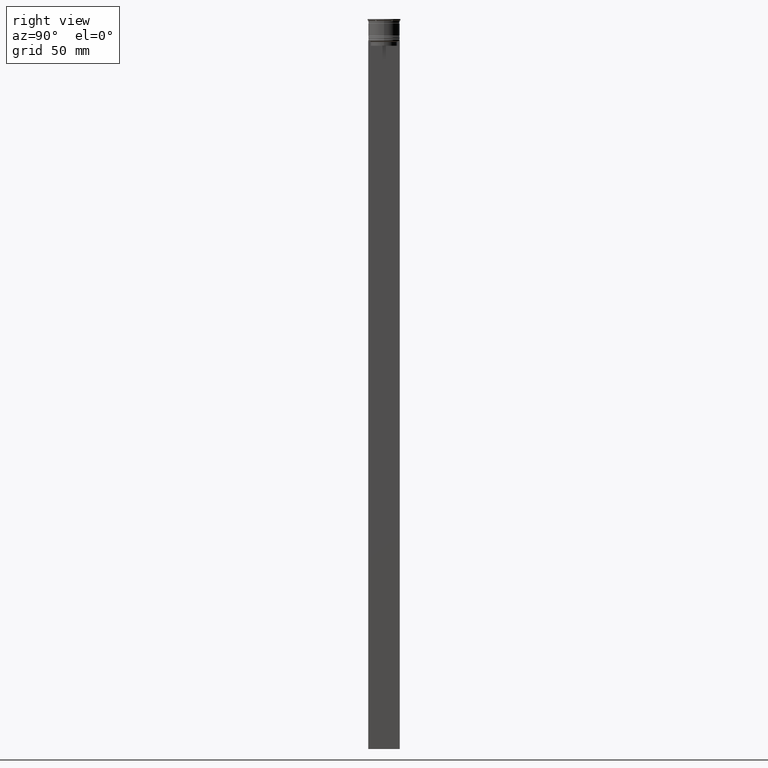
[diagram: clean part render]
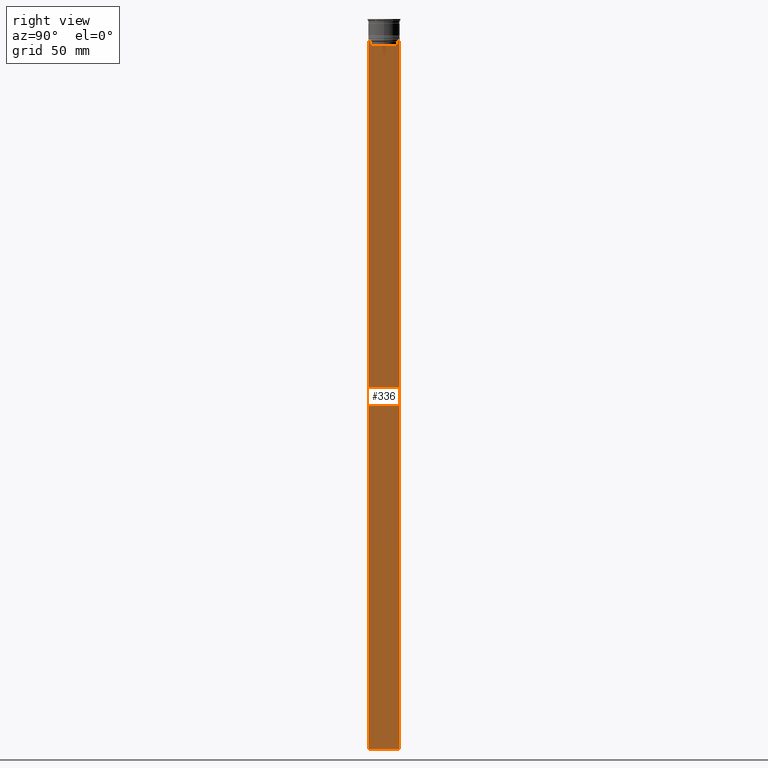
[diagram: same view with one face highlighted and labeled with its STEP entity id]
A machine part, right view. The second image highlights one B-rep face of the part: STEP entity #336.
In plain terms, the highlighted planar face has unit normal (-1, 0, 0).
Its self-contained STEP definition (entity closure, byte-faithful):
#20 = DIRECTION ( 'NONE',  ( -1.000000000000000000, 0.000000000000000000, 0.000000000000000000 ) ) ;
#36 = ORIENTED_EDGE ( 'NONE', *, *, #1886, .T. ) ;
#57 = VERTEX_POINT ( 'NONE', #1461 ) ;
#77 = CARTESIAN_POINT ( 'NONE',  ( 0.5000000000000000000, -8.385105843100616241, 0.000000000000000000 ) ) ;
#112 = LINE ( 'NONE', #960, #1895 ) ;
#126 = EDGE_CURVE ( 'NONE', #885, #1462, #1929, .T. ) ;
#194 = EDGE_CURVE ( 'NONE', #1013, #358, #1632, .T. ) ;
#214 = CARTESIAN_POINT ( 'NONE',  ( 0.5000000000000000000, -10.00000000000000178, 6.024984394500783047 ) ) ;
#246 = CARTESIAN_POINT ( 'NONE',  ( 0.5000000000000000000, 9.999999999999998224, 6.024984394500783047 ) ) ;
#247 = CARTESIAN_POINT ( 'NONE',  ( 0.5000000000000000000, -10.00000000000000178, -14.00000000000000178 ) ) ;
#294 = EDGE_CURVE ( 'NONE', #672, #853, #648, .T. ) ;
#315 = EDGE_CURVE ( 'NONE', #776, #1013, #1501, .T. ) ;
#320 = ORIENTED_EDGE ( 'NONE', *, *, #2610, .F. ) ;
#336 = ADVANCED_FACE ( 'NONE', ( #1254 ), #2061, .F. ) ;
#344 = VERTEX_POINT ( 'NONE', #2355 ) ;
#358 = VERTEX_POINT ( 'NONE', #2154 ) ;
#367 = LINE ( 'NONE', #2606, #1734 ) ;
#385 = CARTESIAN_POINT ( 'NONE',  ( 0.5000000000000000000, -10.00000000000000178, -464.0000000000000000 ) ) ;
#416 = CARTESIAN_POINT ( 'NONE',  ( 0.5000000000000000000, -8.385105843100616241, -14.50000000000000000 ) ) ;
#486 = ORIENTED_EDGE ( 'NONE', *, *, #194, .T. ) ;
#501 = CARTESIAN_POINT ( 'NONE',  ( 0.5000000000000000000, 8.385105843100616241, -14.50000000000000000 ) ) ;
#502 = ORIENTED_EDGE ( 'NONE', *, *, #1962, .T. ) ;
#521 = CARTESIAN_POINT ( 'NONE',  ( 0.5000000000000000000, 8.885943956609230199, -14.00000000000000178 ) ) ;
#529 = VECTOR ( 'NONE', #1989, 1000.000000000000000 ) ;
#548 = LINE ( 'NONE', #1404, #2597 ) ;
#588 = CARTESIAN_POINT ( 'NONE',  ( 0.5000000000000000000, -8.385105843100616241, -14.50000000000000000 ) ) ;
#613 = VECTOR ( 'NONE', #2666, 1000.000000000000000 ) ;
#620 = ORIENTED_EDGE ( 'NONE', *, *, #126, .T. ) ;
#648 = LINE ( 'NONE', #1487, #1270 ) ;
#672 = VERTEX_POINT ( 'NONE', #2589 ) ;
#673 = LINE ( 'NONE', #1242, #613 ) ;
#680 = LINE ( 'NONE', #246, #792 ) ;
#691 = ORIENTED_EDGE ( 'NONE', *, *, #1728, .T. ) ;
#759 = CARTESIAN_POINT ( 'NONE',  ( 0.5000000000000000000, -8.385105843100616241, -17.00000000000000000 ) ) ;
#760 = DIRECTION ( 'NONE',  ( 0.000000000000000000, -1.000000000000000000, 0.000000000000000000 ) ) ;
#776 = VERTEX_POINT ( 'NONE', #860 ) ;
#792 = VECTOR ( 'NONE', #1512, 1000.000000000000000 ) ;
#847 = DIRECTION ( 'NONE',  ( 0.000000000000000000, 0.000000000000000000, 1.000000000000000000 ) ) ;
#853 = VERTEX_POINT ( 'NONE', #2149 ) ;
#860 = CARTESIAN_POINT ( 'NONE',  ( 0.5000000000000000000, 9.887365675446622149, -14.00000000000000178 ) ) ;
#880 = VECTOR ( 'NONE', #2309, 1000.000000000000000 ) ;
#885 = VERTEX_POINT ( 'NONE', #759 ) ;
#889 = VERTEX_POINT ( 'NONE', #2401 ) ;
#951 = ORIENTED_EDGE ( 'NONE', *, *, #315, .T. ) ;
#960 = CARTESIAN_POINT ( 'NONE',  ( 0.5000000000000000000, -10.00000000000000178, 6.024984394500783047 ) ) ;
#971 = EDGE_LOOP ( 'NONE', ( #951, #486, #502, #1266, #620, #1040, #1710, #36, #2554, #691, #320, #2306 ) ) ;
#1013 = VERTEX_POINT ( 'NONE', #1174 ) ;
#1040 = ORIENTED_EDGE ( 'NONE', *, *, #1590, .T. ) ;
#1095 = EDGE_CURVE ( 'NONE', #2493, #776, #673, .T. ) ;
#1137 = CARTESIAN_POINT ( 'NONE',  ( 0.5000000000000000000, -8.885943956609230199, -14.00000000000000178 ) ) ;
#1174 = CARTESIAN_POINT ( 'NONE',  ( 0.5000000000000000000, 8.885943956609230199, -14.00000000000000178 ) ) ;
#1181 = DIRECTION ( 'NONE',  ( 0.000000000000000000, 0.000000000000000000, -1.000000000000000000 ) ) ;
#1242 = CARTESIAN_POINT ( 'NONE',  ( 0.5000000000000000000, -10.00000000000000178, -14.00000000000000178 ) ) ;
#1248 = DIRECTION ( 'NONE',  ( 0.000000000000000000, 1.000000000000000000, 0.000000000000000000 ) ) ;
#1254 = FACE_OUTER_BOUND ( 'NONE', #971, .T. ) ;
#1266 = ORIENTED_EDGE ( 'NONE', *, *, #1935, .T. ) ;
#1270 = VECTOR ( 'NONE', #2514, 1000.000000000000000 ) ;
#1404 = CARTESIAN_POINT ( 'NONE',  ( 0.5000000000000000000, 8.385105843100616241, 0.000000000000000000 ) ) ;
#1461 = CARTESIAN_POINT ( 'NONE',  ( 0.5000000000000000000, 9.999999999999998224, -464.0000000000000000 ) ) ;
#1462 = VERTEX_POINT ( 'NONE', #588 ) ;
#1487 = CARTESIAN_POINT ( 'NONE',  ( 0.5000000000000000000, -10.00000000000000178, -14.00000000000000178 ) ) ;
#1501 = LINE ( 'NONE', #247, #880 ) ;
#1512 = DIRECTION ( 'NONE',  ( 0.000000000000000000, 0.000000000000000000, -1.000000000000000000 ) ) ;
#1523 = EDGE_CURVE ( 'NONE', #344, #2102, #112, .T. ) ;
#1533 = DIRECTION ( 'NONE',  ( -0.000000000000000000, -0.000000000000000000, 1.000000000000000000 ) ) ;
#1571 = LINE ( 'NONE', #1779, #529 ) ;
#1590 = EDGE_CURVE ( 'NONE', #1462, #672, #1903, .T. ) ;
#1632 = B_SPLINE_CURVE_WITH_KNOTS ( 'NONE', 3,
 ( #521, #1949, #2388, #501 ),
 .UNSPECIFIED., .F., .F.,
 ( 4, 4 ),
 ( 0.01511546479386908018, 0.01582316445439079997 ),
 .UNSPECIFIED. ) ;
#1710 = ORIENTED_EDGE ( 'NONE', *, *, #294, .T. ) ;
#1728 = EDGE_CURVE ( 'NONE', #2102, #57, #2215, .T. ) ;
#1734 = VECTOR ( 'NONE', #760, 1000.000000000000000 ) ;
#1779 = CARTESIAN_POINT ( 'NONE',  ( 0.5000000000000000000, -10.00000000000000178, -14.00000000000000178 ) ) ;
#1810 = AXIS2_PLACEMENT_3D ( 'NONE', #214, #20, #847 ) ;
#1877 = CARTESIAN_POINT ( 'NONE',  ( 0.5000000000000000000, -8.552060194457773434, -14.33334167772667023 ) ) ;
#1886 = EDGE_CURVE ( 'NONE', #853, #344, #1571, .T. ) ;
#1895 = VECTOR ( 'NONE', #1181, 1000.000000000000000 ) ;
#1903 = B_SPLINE_CURVE_WITH_KNOTS ( 'NONE', 3,
 ( #416, #1877, #2519, #1137 ),
 .UNSPECIFIED., .F., .F.,
 ( 4, 4 ),
 ( 0.03898465126933130243, 0.03969388910599658260 ),
 .UNSPECIFIED. ) ;
#1929 = LINE ( 'NONE', #77, #2077 ) ;
#1935 = EDGE_CURVE ( 'NONE', #889, #885, #367, .T. ) ;
#1949 = CARTESIAN_POINT ( 'NONE',  ( 0.5000000000000000000, 8.719005771582347464, -14.16667453442325453 ) ) ;
#1962 = EDGE_CURVE ( 'NONE', #358, #889, #548, .T. ) ;
#1989 = DIRECTION ( 'NONE',  ( 0.000000000000000000, -1.000000000000000000, 0.000000000000000000 ) ) ;
#2012 = CARTESIAN_POINT ( 'NONE',  ( 0.5000000000000000000, 9.999999999999998224, -14.00000000000000178 ) ) ;
#2061 = PLANE ( 'NONE',  #1810 ) ;
#2077 = VECTOR ( 'NONE', #1533, 1000.000000000000000 ) ;
#2102 = VERTEX_POINT ( 'NONE', #2326 ) ;
#2149 = CARTESIAN_POINT ( 'NONE',  ( 0.5000000000000000000, -9.887365675446622149, -14.00000000000000178 ) ) ;
#2154 = CARTESIAN_POINT ( 'NONE',  ( 0.5000000000000000000, 8.385105843100616241, -14.50000000000000000 ) ) ;
#2215 = LINE ( 'NONE', #385, #2461 ) ;
#2230 = DIRECTION ( 'NONE',  ( 0.000000000000000000, 0.000000000000000000, -1.000000000000000000 ) ) ;
#2306 = ORIENTED_EDGE ( 'NONE', *, *, #1095, .T. ) ;
#2309 = DIRECTION ( 'NONE',  ( 0.000000000000000000, -1.000000000000000000, 0.000000000000000000 ) ) ;
#2326 = CARTESIAN_POINT ( 'NONE',  ( 0.5000000000000000000, -10.00000000000000178, -464.0000000000000000 ) ) ;
#2355 = CARTESIAN_POINT ( 'NONE',  ( 0.5000000000000000000, -10.00000000000000178, -14.00000000000000178 ) ) ;
#2388 = CARTESIAN_POINT ( 'NONE',  ( 0.5000000000000000000, 8.552060201981378285, -14.33334167021640582 ) ) ;
#2401 = CARTESIAN_POINT ( 'NONE',  ( 0.5000000000000000000, 8.385105843100616241, -17.00000000000000000 ) ) ;
#2461 = VECTOR ( 'NONE', #1248, 1000.000000000000000 ) ;
#2493 = VERTEX_POINT ( 'NONE', #2012 ) ;
#2514 = DIRECTION ( 'NONE',  ( 0.000000000000000000, -1.000000000000000000, 0.000000000000000000 ) ) ;
#2519 = CARTESIAN_POINT ( 'NONE',  ( 0.5000000000000000000, -8.719005764482790966, -14.16667454151159689 ) ) ;
#2554 = ORIENTED_EDGE ( 'NONE', *, *, #1523, .T. ) ;
#2589 = CARTESIAN_POINT ( 'NONE',  ( 0.5000000000000000000, -8.885943956609230199, -14.00000000000000178 ) ) ;
#2597 = VECTOR ( 'NONE', #2230, 1000.000000000000000 ) ;
#2606 = CARTESIAN_POINT ( 'NONE',  ( 0.5000000000000000000, 8.400000000000003908, -17.00000000000000000 ) ) ;
#2610 = EDGE_CURVE ( 'NONE', #2493, #57, #680, .T. ) ;
#2666 = DIRECTION ( 'NONE',  ( 0.000000000000000000, -1.000000000000000000, 0.000000000000000000 ) ) ;